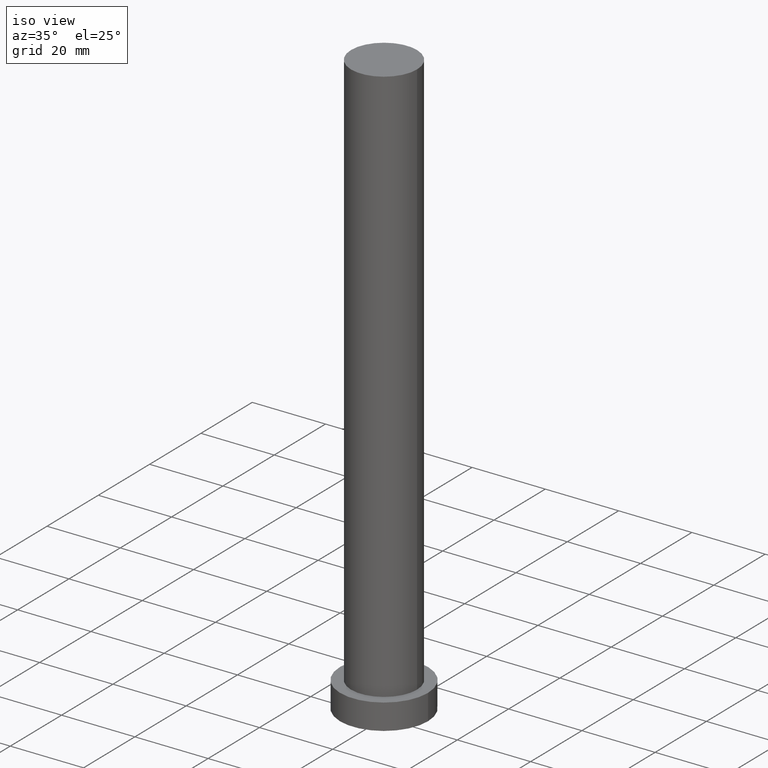
[diagram: clean part render]
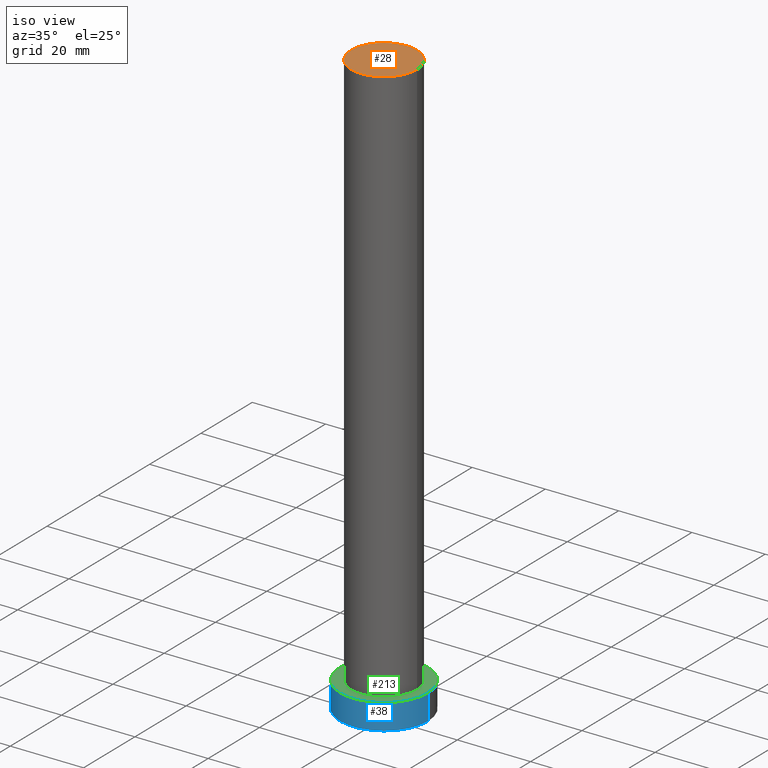
[diagram: same view with three faces highlighted in distinct colors, each labeled with its STEP entity id]
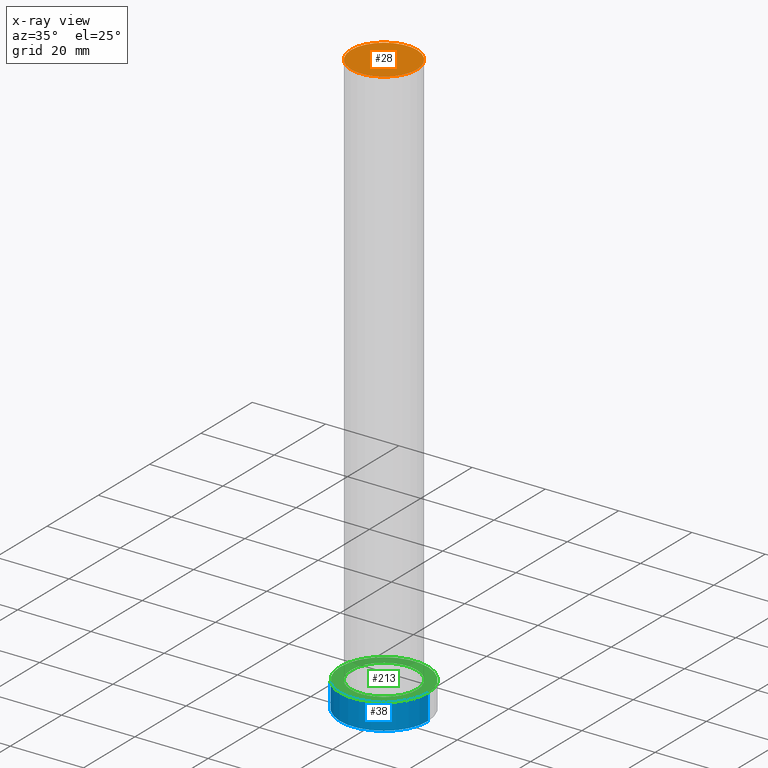
[diagram: x-ray of the same camera — body ghosted, the three highlighted faces saturated]
A machine part, iso view with three faces highlighted in distinct colors.
The next image is the same camera in x-ray (body ghosted, the three faces saturated) — at least one of them is partly hidden behind the body in this view.
Their STEP definitions:

[orange] entity #28 — the highlighted planar face has unit normal (0, 0, 1).
#2 = EDGE_CURVE ( 'NONE', #240, #110, #241, .T. ) ;
#10 = PLANE ( 'NONE',  #223 ) ;
#28 = ADVANCED_FACE ( 'NONE', ( #204 ), #10, .T. ) ;
#29 = AXIS2_PLACEMENT_3D ( 'NONE', #32, #92, #228 ) ;
#32 = CARTESIAN_POINT ( 'NONE',  ( 0.000000000000000000, 0.000000000000000000, 160.0000000000000000 ) ) ;
#50 = DIRECTION ( 'NONE',  ( 0.000000000000000000, 0.000000000000000000, 1.000000000000000000 ) ) ;
#77 = EDGE_CURVE ( 'NONE', #110, #240, #167, .T. ) ;
#81 = DIRECTION ( 'NONE',  ( 0.000000000000000000, 0.000000000000000000, 1.000000000000000000 ) ) ;
#92 = DIRECTION ( 'NONE',  ( 0.000000000000000000, 0.000000000000000000, 1.000000000000000000 ) ) ;
#110 = VERTEX_POINT ( 'NONE', #158 ) ;
#139 = AXIS2_PLACEMENT_3D ( 'NONE', #230, #50, #208 ) ;
#147 = CARTESIAN_POINT ( 'NONE',  ( 0.000000000000000000, 0.000000000000000000, 160.0000000000000000 ) ) ;
#158 = CARTESIAN_POINT ( 'NONE',  ( 9.000000000000000000, 1.102182119232617714E-15, 160.0000000000000000 ) ) ;
#167 = CIRCLE ( 'NONE', #139, 9.000000000000000000 ) ;
#173 = DIRECTION ( 'NONE',  ( 1.000000000000000000, 0.000000000000000000, -0.000000000000000000 ) ) ;
#189 = EDGE_LOOP ( 'NONE', ( #229, #255 ) ) ;
#204 = FACE_OUTER_BOUND ( 'NONE', #189, .T. ) ;
#208 = DIRECTION ( 'NONE',  ( 1.000000000000000000, 0.000000000000000000, 0.000000000000000000 ) ) ;
#215 = CARTESIAN_POINT ( 'NONE',  ( -9.000000000000000000, 0.000000000000000000, 160.0000000000000000 ) ) ;
#223 = AXIS2_PLACEMENT_3D ( 'NONE', #147, #81, #173 ) ;
#228 = DIRECTION ( 'NONE',  ( 1.000000000000000000, 0.000000000000000000, 0.000000000000000000 ) ) ;
#229 = ORIENTED_EDGE ( 'NONE', *, *, #2, .T. ) ;
#230 = CARTESIAN_POINT ( 'NONE',  ( 0.000000000000000000, 0.000000000000000000, 160.0000000000000000 ) ) ;
#240 = VERTEX_POINT ( 'NONE', #215 ) ;
#241 = CIRCLE ( 'NONE', #29, 9.000000000000000000 ) ;
#255 = ORIENTED_EDGE ( 'NONE', *, *, #77, .T. ) ;

[blue] entity #38 — the highlighted cylindrical surface (partial cylindrical patch) has radius 12 mm, axis along (-0, -0, -1).
#7 = AXIS2_PLACEMENT_3D ( 'NONE', #226, #202, #95 ) ;
#8 = DIRECTION ( 'NONE',  ( 0.000000000000000000, 0.000000000000000000, 1.000000000000000000 ) ) ;
#11 = LINE ( 'NONE', #14, #152 ) ;
#12 = EDGE_CURVE ( 'NONE', #153, #242, #60, .T. ) ;
#14 = CARTESIAN_POINT ( 'NONE',  ( 12.00000000000000178, 1.469576158976824144E-15, 7.000000000000000000 ) ) ;
#18 = EDGE_CURVE ( 'NONE', #141, #242, #11, .T. ) ;
#30 = DIRECTION ( 'NONE',  ( 0.000000000000000000, 0.000000000000000000, 1.000000000000000000 ) ) ;
#33 = FACE_OUTER_BOUND ( 'NONE', #161, .T. ) ;
#38 = ADVANCED_FACE ( 'NONE', ( #33 ), #151, .T. ) ;
#39 = LINE ( 'NONE', #54, #205 ) ;
#48 = ORIENTED_EDGE ( 'NONE', *, *, #53, .F. ) ;
#53 = EDGE_CURVE ( 'NONE', #203, #141, #186, .T. ) ;
#54 = CARTESIAN_POINT ( 'NONE',  ( -12.00000000000000178, 0.000000000000000000, 7.000000000000000000 ) ) ;
#60 = CIRCLE ( 'NONE', #118, 12.00000000000000178 ) ;
#72 = ORIENTED_EDGE ( 'NONE', *, *, #12, .T. ) ;
#83 = AXIS2_PLACEMENT_3D ( 'NONE', #247, #30, #113 ) ;
#95 = DIRECTION ( 'NONE',  ( -1.000000000000000000, 0.000000000000000000, 0.000000000000000000 ) ) ;
#113 = DIRECTION ( 'NONE',  ( 1.000000000000000000, 0.000000000000000000, 0.000000000000000000 ) ) ;
#118 = AXIS2_PLACEMENT_3D ( 'NONE', #248, #8, #131 ) ;
#128 = ORIENTED_EDGE ( 'NONE', *, *, #18, .F. ) ;
#131 = DIRECTION ( 'NONE',  ( 1.000000000000000000, 0.000000000000000000, 0.000000000000000000 ) ) ;
#141 = VERTEX_POINT ( 'NONE', #162 ) ;
#151 = CYLINDRICAL_SURFACE ( 'NONE', #7, 12.00000000000000178 ) ;
#152 = VECTOR ( 'NONE', #191, 1000.000000000000000 ) ;
#153 = VERTEX_POINT ( 'NONE', #235 ) ;
#161 = EDGE_LOOP ( 'NONE', ( #128, #48, #164, #72 ) ) ;
#162 = CARTESIAN_POINT ( 'NONE',  ( 12.00000000000000178, 1.469576158976824144E-15, 7.000000000000000000 ) ) ;
#164 = ORIENTED_EDGE ( 'NONE', *, *, #183, .T. ) ;
#183 = EDGE_CURVE ( 'NONE', #203, #153, #39, .T. ) ;
#186 = CIRCLE ( 'NONE', #83, 12.00000000000000178 ) ;
#191 = DIRECTION ( 'NONE',  ( -0.000000000000000000, -0.000000000000000000, -1.000000000000000000 ) ) ;
#194 = CARTESIAN_POINT ( 'NONE',  ( 12.00000000000000178, 1.469576158976824144E-15, 0.000000000000000000 ) ) ;
#202 = DIRECTION ( 'NONE',  ( -0.000000000000000000, -0.000000000000000000, -1.000000000000000000 ) ) ;
#203 = VERTEX_POINT ( 'NONE', #234 ) ;
#205 = VECTOR ( 'NONE', #211, 1000.000000000000000 ) ;
#211 = DIRECTION ( 'NONE',  ( -0.000000000000000000, -0.000000000000000000, -1.000000000000000000 ) ) ;
#226 = CARTESIAN_POINT ( 'NONE',  ( 0.000000000000000000, 0.000000000000000000, 7.000000000000000000 ) ) ;
#234 = CARTESIAN_POINT ( 'NONE',  ( -12.00000000000000178, 0.000000000000000000, 7.000000000000000000 ) ) ;
#235 = CARTESIAN_POINT ( 'NONE',  ( -12.00000000000000178, 0.000000000000000000, 0.000000000000000000 ) ) ;
#242 = VERTEX_POINT ( 'NONE', #194 ) ;
#247 = CARTESIAN_POINT ( 'NONE',  ( 0.000000000000000000, 0.000000000000000000, 7.000000000000000000 ) ) ;
#248 = CARTESIAN_POINT ( 'NONE',  ( 0.000000000000000000, 0.000000000000000000, 0.000000000000000000 ) ) ;

[green] entity #213 — the highlighted planar face has unit normal (0, 0, 1).
#13 = DIRECTION ( 'NONE',  ( 0.000000000000000000, 0.000000000000000000, 1.000000000000000000 ) ) ;
#19 = DIRECTION ( 'NONE',  ( 1.000000000000000000, 0.000000000000000000, 0.000000000000000000 ) ) ;
#27 = AXIS2_PLACEMENT_3D ( 'NONE', #237, #212, #19 ) ;
#30 = DIRECTION ( 'NONE',  ( 0.000000000000000000, 0.000000000000000000, 1.000000000000000000 ) ) ;
#37 = CARTESIAN_POINT ( 'NONE',  ( 0.000000000000000000, 0.000000000000000000, 7.000000000000000000 ) ) ;
#53 = EDGE_CURVE ( 'NONE', #203, #141, #186, .T. ) ;
#59 = CARTESIAN_POINT ( 'NONE',  ( 0.000000000000000000, 0.000000000000000000, 7.000000000000000000 ) ) ;
#62 = EDGE_CURVE ( 'NONE', #166, #245, #216, .T. ) ;
#70 = EDGE_LOOP ( 'NONE', ( #222, #132 ) ) ;
#74 = AXIS2_PLACEMENT_3D ( 'NONE', #37, #133, #192 ) ;
#83 = AXIS2_PLACEMENT_3D ( 'NONE', #247, #30, #113 ) ;
#93 = CARTESIAN_POINT ( 'NONE',  ( 0.000000000000000000, 0.000000000000000000, 7.000000000000000000 ) ) ;
#99 = FACE_OUTER_BOUND ( 'NONE', #160, .T. ) ;
#111 = ORIENTED_EDGE ( 'NONE', *, *, #53, .T. ) ;
#113 = DIRECTION ( 'NONE',  ( 1.000000000000000000, 0.000000000000000000, 0.000000000000000000 ) ) ;
#116 = PLANE ( 'NONE',  #74 ) ;
#117 = CARTESIAN_POINT ( 'NONE',  ( -9.000000000000000000, 0.000000000000000000, 7.000000000000000000 ) ) ;
#124 = EDGE_CURVE ( 'NONE', #141, #203, #157, .T. ) ;
#130 = AXIS2_PLACEMENT_3D ( 'NONE', #93, #13, #170 ) ;
#132 = ORIENTED_EDGE ( 'NONE', *, *, #62, .F. ) ;
#133 = DIRECTION ( 'NONE',  ( 0.000000000000000000, 0.000000000000000000, 1.000000000000000000 ) ) ;
#137 = FACE_BOUND ( 'NONE', #70, .T. ) ;
#138 = DIRECTION ( 'NONE',  ( 1.000000000000000000, 0.000000000000000000, 0.000000000000000000 ) ) ;
#141 = VERTEX_POINT ( 'NONE', #162 ) ;
#144 = CIRCLE ( 'NONE', #184, 9.000000000000000000 ) ;
#150 = ORIENTED_EDGE ( 'NONE', *, *, #124, .T. ) ;
#157 = CIRCLE ( 'NONE', #27, 12.00000000000000178 ) ;
#160 = EDGE_LOOP ( 'NONE', ( #111, #150 ) ) ;
#162 = CARTESIAN_POINT ( 'NONE',  ( 12.00000000000000178, 1.469576158976824144E-15, 7.000000000000000000 ) ) ;
#166 = VERTEX_POINT ( 'NONE', #252 ) ;
#170 = DIRECTION ( 'NONE',  ( 1.000000000000000000, 0.000000000000000000, 0.000000000000000000 ) ) ;
#175 = EDGE_CURVE ( 'NONE', #245, #166, #144, .T. ) ;
#184 = AXIS2_PLACEMENT_3D ( 'NONE', #59, #214, #138 ) ;
#186 = CIRCLE ( 'NONE', #83, 12.00000000000000178 ) ;
#192 = DIRECTION ( 'NONE',  ( 1.000000000000000000, 0.000000000000000000, -0.000000000000000000 ) ) ;
#203 = VERTEX_POINT ( 'NONE', #234 ) ;
#212 = DIRECTION ( 'NONE',  ( 0.000000000000000000, 0.000000000000000000, 1.000000000000000000 ) ) ;
#213 = ADVANCED_FACE ( 'NONE', ( #137, #99 ), #116, .T. ) ;
#214 = DIRECTION ( 'NONE',  ( 0.000000000000000000, 0.000000000000000000, 1.000000000000000000 ) ) ;
#216 = CIRCLE ( 'NONE', #130, 9.000000000000000000 ) ;
#222 = ORIENTED_EDGE ( 'NONE', *, *, #175, .F. ) ;
#234 = CARTESIAN_POINT ( 'NONE',  ( -12.00000000000000178, 0.000000000000000000, 7.000000000000000000 ) ) ;
#237 = CARTESIAN_POINT ( 'NONE',  ( 0.000000000000000000, 0.000000000000000000, 7.000000000000000000 ) ) ;
#245 = VERTEX_POINT ( 'NONE', #117 ) ;
#247 = CARTESIAN_POINT ( 'NONE',  ( 0.000000000000000000, 0.000000000000000000, 7.000000000000000000 ) ) ;
#252 = CARTESIAN_POINT ( 'NONE',  ( 9.000000000000000000, 1.102182119232617714E-15, 7.000000000000000000 ) ) ;